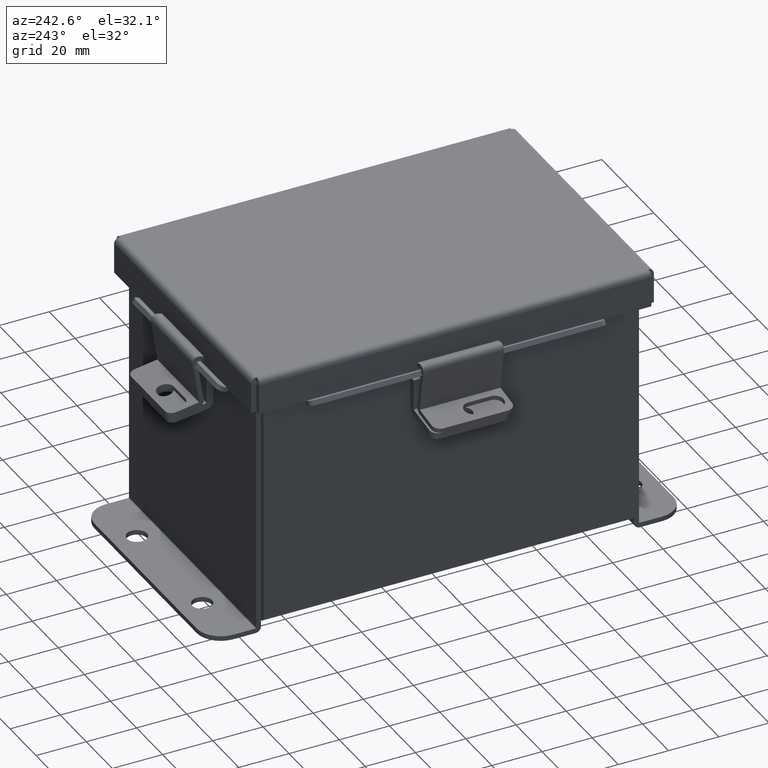
[diagram: clean part render]
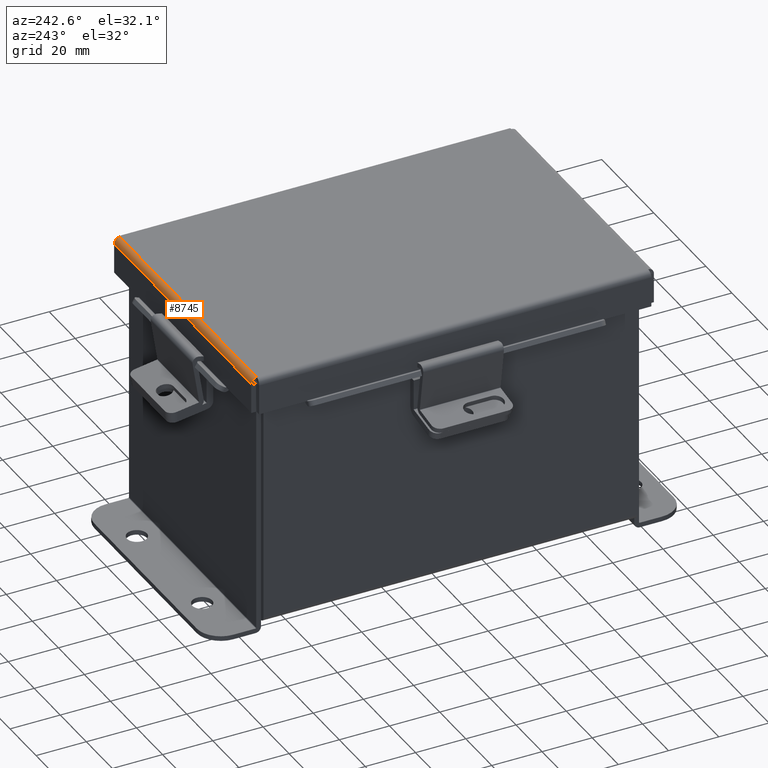
[diagram: same view with one face highlighted and labeled with its STEP entity id]
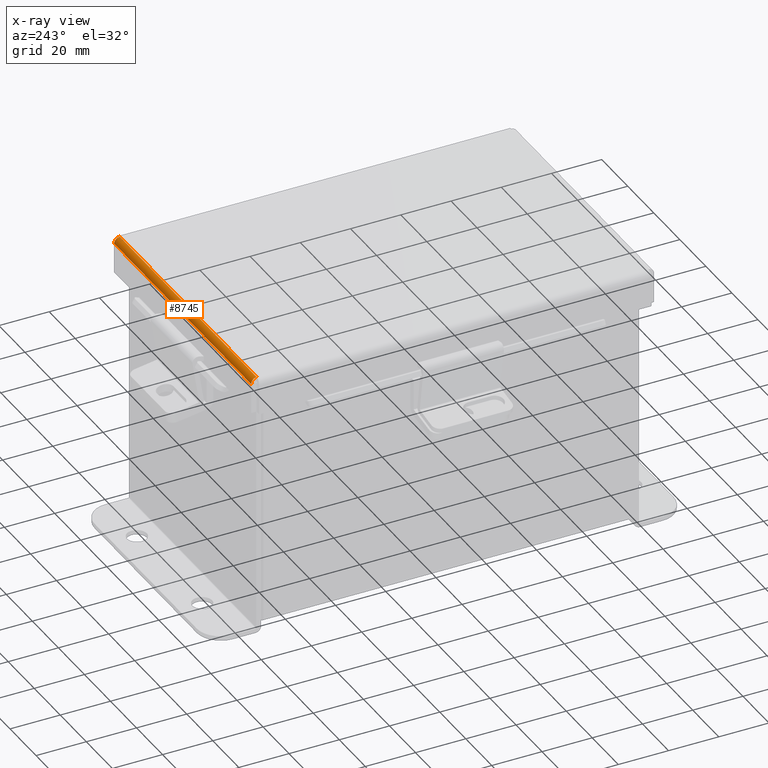
[diagram: x-ray of the same camera — body ghosted, the highlighted face saturated]
A machine part, auxiliary view. The second image highlights one B-rep face of the part: STEP entity #8745.
The next image is the same camera in x-ray: the body ghosted, the highlighted face saturated — about 0% of this face is hidden behind the body in this view.
In plain terms, the highlighted cylindrical surface (edge-blend (fillet) strip) has radius 2.2276 mm, axis along (1, -0, 0).
Its self-contained STEP definition (entity closure, byte-faithful):
#314 = B_SPLINE_CURVE_WITH_KNOTS ( 'NONE', 3,
 ( #1907, #4139, #9341, #4890, #452, #5636, #1194, #6393, #1937, #7136 ),
 .UNSPECIFIED., .F., .F.,
 ( 4, 2, 2, 2, 4 ),
 ( 0.0000000000000000000, 0.2500000000000000000, 0.5000000000000000000, 0.7500000000000000000, 1.000000000000000000 ),
 .UNSPECIFIED. ) ;
#406 = DIRECTION ( 'NONE',  ( 1.000000000000000000, 0.0000000000000000000, 0.0000000000000000000 ) ) ;
#443 = DIRECTION ( 'NONE',  ( -1.000000000000000000, -0.0000000000000000000, -0.0000000000000000000 ) ) ;
#452 = CARTESIAN_POINT ( 'NONE',  ( -2.072008543776413100, 3.138680782078319800, -0.04089574734180007700 ) ) ;
#1069 = CARTESIAN_POINT ( 'NONE',  ( 2.070526310729377900, 3.112717384578527600, -0.06363106625866839200 ) ) ;
#1125 = EDGE_CURVE ( 'NONE', #5622, #1572, #2807, .T. ) ;
#1194 = CARTESIAN_POINT ( 'NONE',  ( -2.070526310729379200, 3.112717384578527200, -0.06363106625866842000 ) ) ;
#1572 = VERTEX_POINT ( 'NONE', #9440 ) ;
#1808 = CARTESIAN_POINT ( 'NONE',  ( 2.072008543776412600, 3.138680782078320700, -0.04089574734180008400 ) ) ;
#1852 = ORIENTED_EDGE ( 'NONE', *, *, #4790, .F. ) ;
#1901 = CARTESIAN_POINT ( 'NONE',  ( -2.074478932188136100, 3.068549999999999700, -0.07469999999999994700 ) ) ;
#1907 = CARTESIAN_POINT ( 'NONE',  ( -2.074478932188136100, 3.156250000000000000, 0.01299999999999986400 ) ) ;
#1930 = DIRECTION ( 'NONE',  ( 0.0000000000000000000, 1.000000000000000000, -3.358350761880586900E-015 ) ) ;
#1937 = CARTESIAN_POINT ( 'NONE',  ( -2.069044077682345300, 3.080029903154991800, -0.07469999999999994700 ) ) ;
#2033 = B_SPLINE_CURVE_WITH_KNOTS ( 'NONE', 3,
 ( #8470, #7720, #5511, #1069, #6260, #1808, #7012, #2552, #7755, #3295 ),
 .UNSPECIFIED., .F., .F.,
 ( 4, 2, 2, 2, 4 ),
 ( 0.0000000000000000000, 0.2500000000000000000, 0.5000000000000000000, 0.7500000000000000000, 1.000000000000000000 ),
 .UNSPECIFIED. ) ;
#2552 = CARTESIAN_POINT ( 'NONE',  ( 2.073490776823446100, 3.153967403743811000, -0.009955289458308985400 ) ) ;
#2633 = CARTESIAN_POINT ( 'NONE',  ( -2.074478932188136100, 3.068549999999999700, 0.01300000000000015000 ) ) ;
#2807 = LINE ( 'NONE', #1901, #5021 ) ;
#3295 = CARTESIAN_POINT ( 'NONE',  ( 2.074478932188134700, 3.156250000000000000, 0.01299999999999985900 ) ) ;
#3636 = ORIENTED_EDGE ( 'NONE', *, *, #4860, .F. ) ;
#3752 = CARTESIAN_POINT ( 'NONE',  ( -2.074478932188136100, 3.156250000000000000, 0.01299999999999986400 ) ) ;
#4096 = CYLINDRICAL_SURFACE ( 'NONE', #5596, 0.08770000000000026400 ) ;
#4139 = CARTESIAN_POINT ( 'NONE',  ( -2.073984854505791300, 3.156249999999998700, 0.001520096845007165000 ) ) ;
#4489 = CARTESIAN_POINT ( 'NONE',  ( 2.074478932188134700, 3.156250000000000000, 0.01299999999999985900 ) ) ;
#4790 = EDGE_CURVE ( 'NONE', #1572, #6517, #2033, .T. ) ;
#4860 = EDGE_CURVE ( 'NONE', #5165, #5622, #314, .T. ) ;
#4890 = CARTESIAN_POINT ( 'NONE',  ( -2.072502621458757000, 3.145181066258668300, -0.03116738457852794700 ) ) ;
#5021 = VECTOR ( 'NONE', #406, 39.37007874015748100 ) ;
#5165 = VERTEX_POINT ( 'NONE', #3752 ) ;
#5323 = LINE ( 'NONE', #9164, #9041 ) ;
#5407 = EDGE_CURVE ( 'NONE', #5165, #6517, #5323, .T. ) ;
#5511 = CARTESIAN_POINT ( 'NONE',  ( 2.069538155364689700, 3.091505289458309500, -0.07241740374381124000 ) ) ;
#5596 = AXIS2_PLACEMENT_3D ( 'NONE', #2633, #443, #1930 ) ;
#5622 = VERTEX_POINT ( 'NONE', #8621 ) ;
#5636 = CARTESIAN_POINT ( 'NONE',  ( -2.071020388411723500, 3.122445747341799900, -0.05713078207832041800 ) ) ;
#5922 = ORIENTED_EDGE ( 'NONE', *, *, #5407, .T. ) ;
#6014 = ORIENTED_EDGE ( 'NONE', *, *, #1125, .F. ) ;
#6260 = CARTESIAN_POINT ( 'NONE',  ( 2.071020388411723100, 3.122445747341799900, -0.05713078207832042500 ) ) ;
#6393 = CARTESIAN_POINT ( 'NONE',  ( -2.069538155364690100, 3.091505289458308200, -0.07241740374381125400 ) ) ;
#6517 = VERTEX_POINT ( 'NONE', #4489 ) ;
#7012 = CARTESIAN_POINT ( 'NONE',  ( 2.072502621458757000, 3.145181066258668800, -0.03116738457852795100 ) ) ;
#7136 = CARTESIAN_POINT ( 'NONE',  ( -2.068550000000001000, 3.068549999999999700, -0.07469999999999994700 ) ) ;
#7720 = CARTESIAN_POINT ( 'NONE',  ( 2.069044077682344400, 3.080029903154992700, -0.07469999999999994700 ) ) ;
#7755 = CARTESIAN_POINT ( 'NONE',  ( 2.073984854505790400, 3.156250000000000000, 0.001520096845007165400 ) ) ;
#8069 = FACE_OUTER_BOUND ( 'NONE', #8883, .T. ) ;
#8426 = DIRECTION ( 'NONE',  ( 1.000000000000000000, -5.326952210842322800E-032, 1.741613323795413600E-046 ) ) ;
#8470 = CARTESIAN_POINT ( 'NONE',  ( 2.068549999999999700, 3.068550000000000100, -0.07470000000000036300 ) ) ;
#8621 = CARTESIAN_POINT ( 'NONE',  ( -2.068550000000001000, 3.068549999999999700, -0.07469999999999994700 ) ) ;
#8745 = ADVANCED_FACE ( 'NONE', ( #8069 ), #4096, .T. ) ;
#8883 = EDGE_LOOP ( 'NONE', ( #6014, #3636, #5922, #1852 ) ) ;
#9041 = VECTOR ( 'NONE', #8426, 39.37007874015748100 ) ;
#9164 = CARTESIAN_POINT ( 'NONE',  ( 2.156249999999999100, 3.156250000000000000, 0.01299999999999986400 ) ) ;
#9341 = CARTESIAN_POINT ( 'NONE',  ( -2.073490776823447000, 3.153967403743811000, -0.009955289458308987100 ) ) ;
#9440 = CARTESIAN_POINT ( 'NONE',  ( 2.068549999999999700, 3.068550000000000100, -0.07470000000000036300 ) ) ;